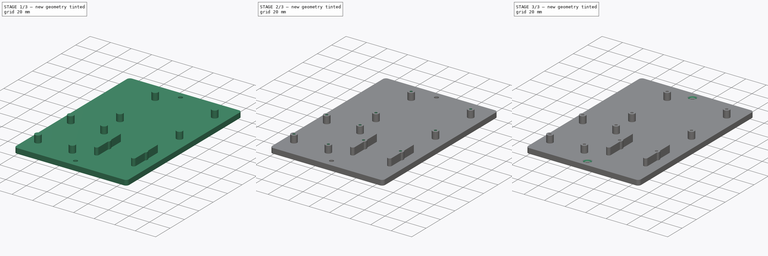
[diagram: build sequence overview — one tinted view per stage of 3, left to right]
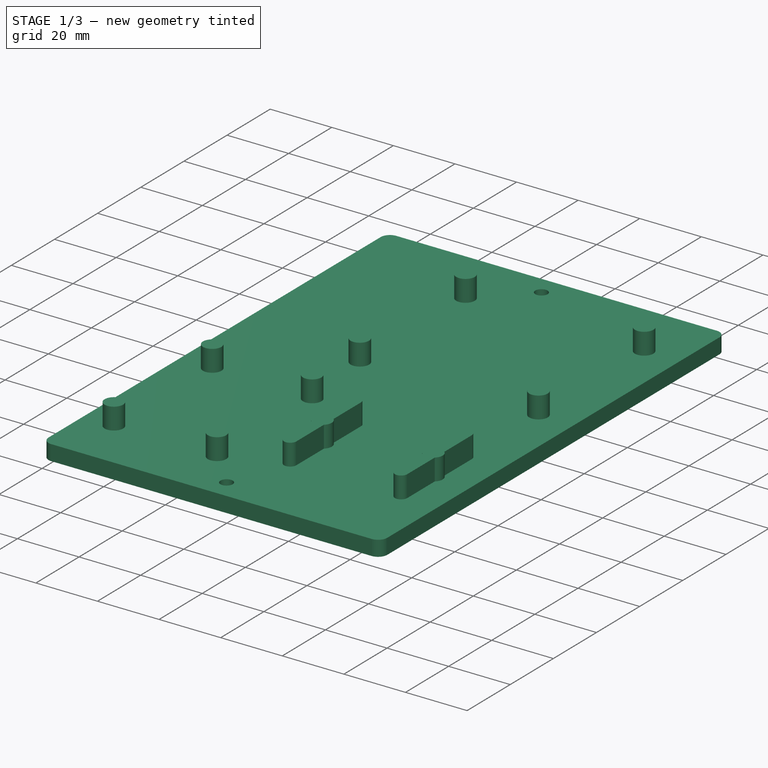
[diagram: stage 1 of 3 — iso view after this stage's code; geometry added in this stage tinted green]
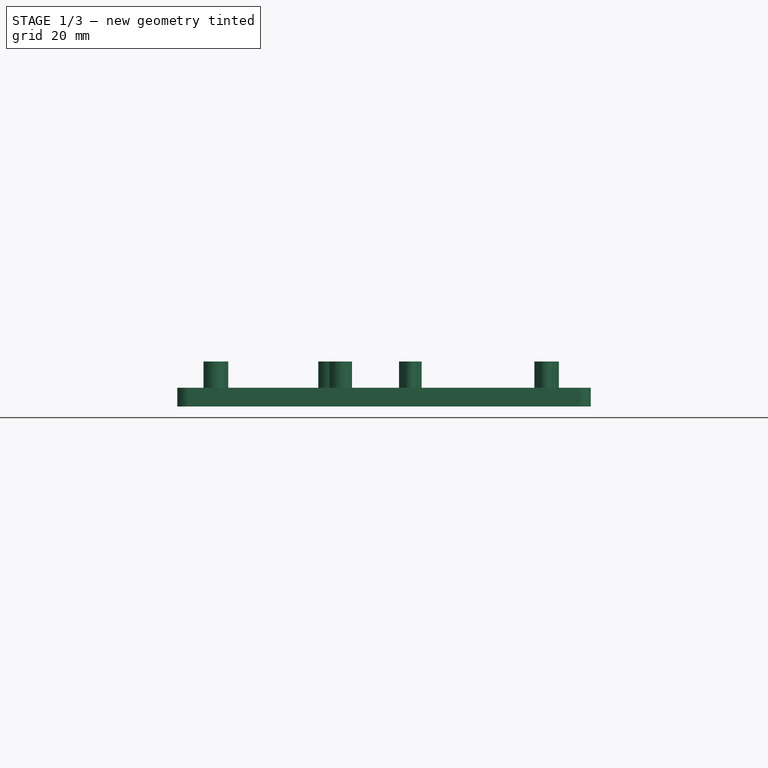
[diagram: stage 1 of 3 — front view after this stage's code; geometry added in this stage tinted green]
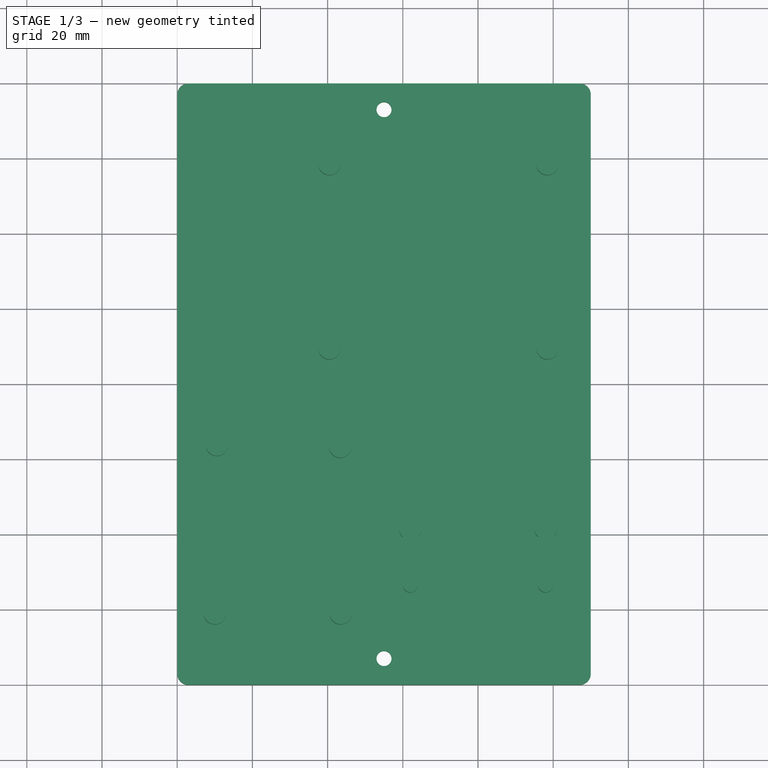
[diagram: stage 1 of 3 — top view after this stage's code; geometry added in this stage tinted green]
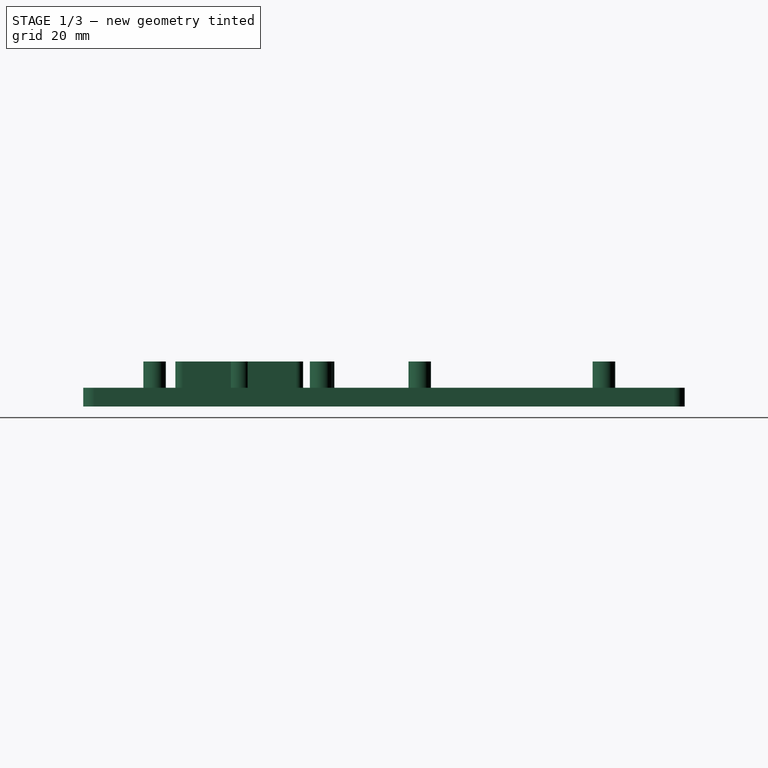
[diagram: stage 1 of 3 — right view after this stage's code; geometry added in this stage tinted green]
FCSTD DOCUMENT  (FreeCAD 1.0R39109 (Git))
Label: LV_Teil
License: All rights reserved
LicenseURL: https://en.wikipedia.org/wiki/All_rights_reserved
objects: Sketcher::SketchObject×3, PartDesign::Pad×2, PartDesign::Line×2, PartDesign::Groove×2, PartDesign::Pocket×1, PartDesign::Plane×1, PartDesign::Body×1
note: 25 computed .brp shape members not serialized (recipe doc carries the construction recipe); baked Part::Feature solids carry a one-line shape summary decoded from their .brp

FEATURE [Sketcher::SketchObject] Sketch
  ArcFitTolerance = 1e-06
  AttachmentSupport = -> [XY_Plane]
  FullyConstrained = true
  MakeInternals = false
  MapMode = 5
  sketch-geometry (85):
    g0: LineSegment StartX=9e-16 StartY=-3 StartZ=0 EndX=9e-16 EndY=-157 EndZ=0
    g1: LineSegment StartX=3 StartY=-160 StartZ=0 EndX=107 EndY=-160 EndZ=0
    g2: LineSegment StartX=110 StartY=-157 StartZ=0 EndX=110 EndY=-3 EndZ=0
    g3: LineSegment StartX=107 StartY=0 StartZ=0 EndX=3 EndY=0 EndZ=0
    g4: ArcOfCircle CenterX=3 CenterY=-3 CenterZ=0 NormalX=0 NormalY=0 NormalZ=1 AngleXU=0 Radius=3 StartAngle=1.5708 EndAngle=3.14159
    g5: ArcOfCircle CenterX=3 CenterY=-157 CenterZ=0 NormalX=0 NormalY=0 NormalZ=1 AngleXU=0 Radius=3 StartAngle=3.14159 EndAngle=4.71239
    g6: ArcOfCircle CenterX=107 CenterY=-157 CenterZ=0 NormalX=0 NormalY=0 NormalZ=1 AngleXU=0 Radius=3 StartAngle=4.71239 EndAngle=6.28319
    g7: ArcOfCircle CenterX=107 CenterY=-3 CenterZ=0 NormalX=0 NormalY=0 NormalZ=1 AngleXU=0 Radius=3 StartAngle=0 EndAngle=1.5708
    g8: GeomPoint [constr] X=0 Y=0 Z=0
    g9: GeomPoint [constr] X=110 Y=-160 Z=0
    g10: LineSegment [constr] StartX=107 StartY=-157 StartZ=0 EndX=107 EndY=-144 EndZ=0
    g11: LineSegment [constr] StartX=107 StartY=-144 StartZ=0 EndX=102 EndY=-144 EndZ=0
    g12: LineSegment [constr] StartX=102 StartY=-144 StartZ=0 EndX=102 EndY=-157 EndZ=0
    g13: LineSegment [constr] StartX=102 StartY=-157 StartZ=0 EndX=107 EndY=-157 EndZ=0
    g14: LineSegment [constr] StartX=102 StartY=-144 StartZ=0 EndX=102 EndY=-93 EndZ=0
    g15: LineSegment [constr] StartX=102 StartY=-93 StartZ=0 EndX=58 EndY=-93 EndZ=0
    g16: LineSegment [constr] StartX=58 StartY=-93 StartZ=0 EndX=58 EndY=-144 EndZ=0
    g17: LineSegment [constr] StartX=58 StartY=-144 StartZ=0 EndX=102 EndY=-144 EndZ=0
    g18: GeomPoint X=55 Y=0 Z=0
    g19: GeomPoint X=55 Y=-160 Z=0
    g20: LineSegment [constr] StartX=55 StartY=0 StartZ=0 EndX=55 EndY=-7 EndZ=0
    g21: LineSegment [constr] StartX=55 StartY=-160 StartZ=0 EndX=55 EndY=-153 EndZ=0
    g22: Circle CenterX=55 CenterY=-153 CenterZ=0 NormalX=0 NormalY=0 NormalZ=1 AngleXU=0 Radius=2
    g23: Circle CenterX=55 CenterY=-7 CenterZ=0 NormalX=0 NormalY=0 NormalZ=1 AngleXU=0 Radius=2
    g24: Circle CenterX=10 CenterY=-141 CenterZ=0 NormalX=0 NormalY=0 NormalZ=1 AngleXU=0 Radius=1.25
    g25: Circle CenterX=43.5 CenterY=-141 CenterZ=0 NormalX=0 NormalY=0 NormalZ=1 AngleXU=0 Radius=1.25
    g26: Circle CenterX=10.5661 CenterY=-96.2036 CenterZ=0 NormalX=0 NormalY=0 NormalZ=1 AngleXU=0 Radius=1.25
    g27: Circle CenterX=43.3624 CenterY=-96.7002 CenterZ=0 NormalX=0 NormalY=0 NormalZ=1 AngleXU=0 Radius=1.25
    g28: Circle CenterX=62 CenterY=-118.5 CenterZ=0 NormalX=0 NormalY=0 NormalZ=1 AngleXU=0 Radius=1.25
    g29: Circle CenterX=98 CenterY=-118.5 CenterZ=0 NormalX=0 NormalY=0 NormalZ=1 AngleXU=0 Radius=1.25
    g30: LineSegment [constr] StartX=17 StartY=-18 StartZ=0 EndX=17 EndY=-74 EndZ=0
    g31: LineSegment [constr] StartX=17 StartY=-74 StartZ=0 EndX=102 EndY=-74 EndZ=0
    g32: LineSegment [constr] StartX=102 StartY=-74 StartZ=0 EndX=102 EndY=-18 EndZ=0
    g33: LineSegment [constr] StartX=102 StartY=-18 StartZ=0 EndX=17 EndY=-18 EndZ=0
    g34: LineSegment [constr] StartX=102 StartY=-18 StartZ=0 EndX=107 EndY=-18 EndZ=0
    g35: LineSegment [constr] StartX=107 StartY=-18 StartZ=0 EndX=107 EndY=-3 EndZ=0
    g36: LineSegment [constr] StartX=107 StartY=-3 StartZ=0 EndX=102 EndY=-3 EndZ=0
    g37: LineSegment [constr] StartX=102 StartY=-3 StartZ=0 EndX=102 EndY=-18 EndZ=0
    g38: Circle CenterX=40.5 CenterY=-21.5 CenterZ=0 NormalX=0 NormalY=0 NormalZ=1 AngleXU=0 Radius=1.25
    g39: Circle CenterX=40.5 CenterY=-70.5 CenterZ=0 NormalX=0 NormalY=0 NormalZ=1 AngleXU=0 Radius=1.25
    g40: Circle CenterX=98.5 CenterY=-21.5 CenterZ=0 NormalX=0 NormalY=0 NormalZ=1 AngleXU=0 Radius=1.25
    g41: Circle CenterX=98.5 CenterY=-70.5 CenterZ=0 NormalX=0 NormalY=0 NormalZ=1 AngleXU=0 Radius=1.25
    g42: Circle CenterX=40.5 CenterY=-70.5 CenterZ=0 NormalX=0 NormalY=0 NormalZ=1 AngleXU=0 Radius=3
    g43: Circle CenterX=98.5 CenterY=-70.5 CenterZ=0 NormalX=0 NormalY=0 NormalZ=1 AngleXU=0 Radius=3
    g44: Circle CenterX=40.5 CenterY=-21.5 CenterZ=0 NormalX=0 NormalY=0 NormalZ=1 AngleXU=0 Radius=3
    g45: Circle CenterX=98.5 CenterY=-21.5 CenterZ=0 NormalX=0 NormalY=0 NormalZ=1 AngleXU=0 Radius=3
    g46: Circle CenterX=10.5661 CenterY=-96.2036 CenterZ=0 NormalX=0 NormalY=0 NormalZ=1 AngleXU=0 Radius=3
    g47: Circle CenterX=43.3624 CenterY=-96.7002 CenterZ=0 NormalX=0 NormalY=0 NormalZ=1 AngleXU=0 Radius=3
    g48: Circle CenterX=10 CenterY=-141 CenterZ=0 NormalX=0 NormalY=0 NormalZ=1 AngleXU=0 Radius=3
    g49: Circle CenterX=43.5 CenterY=-141 CenterZ=0 NormalX=0 NormalY=0 NormalZ=1 AngleXU=0 Radius=3
    g50: Circle CenterX=62 CenterY=-118.5 CenterZ=0 NormalX=0 NormalY=0 NormalZ=1 AngleXU=0 Radius=3
    g51: Circle CenterX=98 CenterY=-118.5 CenterZ=0 NormalX=0 NormalY=0 NormalZ=1 AngleXU=0 Radius=3
    g52: GeomPoint [constr] X=62 Y=-118.5 Z=0
    g53: GeomPoint [constr] X=98 Y=-118.5 Z=0
    g54: LineSegment [constr] StartX=60 StartY=-133.5 StartZ=0 EndX=64 EndY=-133.5 EndZ=0
    g55: LineSegment [constr] StartX=64 StartY=-133.5 StartZ=0 EndX=64 EndY=-103.5 EndZ=0
    g56: LineSegment [constr] StartX=64 StartY=-103.5 StartZ=0 EndX=60 EndY=-103.5 EndZ=0
    g57: LineSegment [constr] StartX=60 StartY=-103.5 StartZ=0 EndX=60 EndY=-133.5 EndZ=0
    g58: GeomPoint [constr] X=62 Y=-118.5 Z=0
    g59: LineSegment [constr] StartX=96 StartY=-133.5 StartZ=0 EndX=100 EndY=-133.5 EndZ=0
    g60: LineSegment [constr] StartX=100 StartY=-133.5 StartZ=0 EndX=100 EndY=-103.5 EndZ=0
    g61: LineSegment [constr] StartX=100 StartY=-103.5 StartZ=0 EndX=96 EndY=-103.5 EndZ=0
    g62: LineSegment [constr] StartX=96 StartY=-103.5 StartZ=0 EndX=96 EndY=-133.5 EndZ=0
    g63: GeomPoint [constr] X=98 Y=-118.5 Z=0
    g64: GeomPoint [constr] X=62 Y=-103.5 Z=0
    g65: GeomPoint [constr] X=62 Y=-133.5 Z=0
    g66: ArcOfCircle CenterX=62 CenterY=-103.5 CenterZ=0 NormalX=0 NormalY=0 NormalZ=1 AngleXU=0 Radius=2 StartAngle=-3.6e-15 EndAngle=3.14159
    g67: ArcOfCircle CenterX=62 CenterY=-133.5 CenterZ=0 NormalX=0 NormalY=0 NormalZ=1 AngleXU=0 Radius=2 StartAngle=3.14159 EndAngle=6.28319
    g68: LineSegment StartX=64 StartY=-103.5 StartZ=0 EndX=64 EndY=-133.5 EndZ=0
    g69: LineSegment StartX=60 StartY=-103.5 StartZ=0 EndX=60 EndY=-133.5 EndZ=0
    g70: GeomPoint X=98 Y=-103.5 Z=0
    g71: GeomPoint X=98 Y=-133.5 Z=0
    g72: ArcOfCircle CenterX=98 CenterY=-103.5 CenterZ=0 NormalX=0 NormalY=0 NormalZ=1 AngleXU=0 Radius=2 StartAngle=5e-16 EndAngle=3.14159
    g73: ArcOfCircle CenterX=98 CenterY=-133.5 CenterZ=0 NormalX=0 NormalY=0 NormalZ=1 AngleXU=0 Radius=2 StartAngle=3.14159 EndAngle=6.28319
    g74: LineSegment StartX=100 StartY=-103.5 StartZ=0 EndX=100 EndY=-133.5 EndZ=0
    g75: LineSegment StartX=96 StartY=-103.5 StartZ=0 EndX=96 EndY=-133.5 EndZ=0
    g76: LineSegment [constr] StartX=3 StartY=-157 StartZ=0 EndX=10 EndY=-157 EndZ=0
    g77: LineSegment [constr] StartX=10 StartY=-157 StartZ=0 EndX=10 EndY=-141 EndZ=0
    g78: LineSegment [constr] StartX=10 StartY=-141 StartZ=0 EndX=3 EndY=-141 EndZ=0
    g79: LineSegment [constr] StartX=3 StartY=-141 StartZ=0 EndX=3 EndY=-157 EndZ=0
    g80: LineSegment [constr] StartX=10 StartY=-141 StartZ=0 EndX=43.5 EndY=-141 EndZ=0
    g81: LineSegment [constr] StartX=10.5661 StartY=-96.2036 StartZ=0 EndX=10 EndY=-141 EndZ=0
    g82: LineSegment [constr] StartX=10.5661 StartY=-96.2036 StartZ=0 EndX=43.5 EndY=-141 EndZ=0
    g83: LineSegment [constr] StartX=43.5 StartY=-141 StartZ=0 EndX=43.3624 EndY=-96.7002 EndZ=0
    g84: LineSegment [constr] StartX=43.3624 StartY=-96.7002 StartZ=0 EndX=10.5661 EndY=-96.2036 EndZ=0
  constraints (197):
    c: Tangent(g0,g4) = -1.5708
    c: Tangent(g0,g5) = -1.5708
    c: Tangent(g1,g5) = -1.5708
    c: Tangent(g1,g6) = -1.5708
    c: Tangent(g2,g6) = -1.5708
    c: Tangent(g2,g7) = -1.5708
    c: Tangent(g3,g7) = -1.5708
    c: Tangent(g3,g4) = -1.5708
    c: Vertical(g0)
    c: Vertical(g2)
    c: Horizontal(g1)
    c: Horizontal(g3)
    c: Equal(g4,g5)
    c: Equal(g5,g6)
    c: Equal(g6,g7)
    c: PointOnObject(g8,g0)
    c: PointOnObject(g8,g3)
    c: PointOnObject(g9,g1)
    c: PointOnObject(g9,g2)
    c: Distance(g0,g2) = 110
    c: Distance(g1,g3) = 160
    c: Radius(g5) = 3
    c: Coincident(g8,g-1)
    c: Coincident(g10,g11)
    c: Coincident(g11,g12)
    c: Coincident(g12,g13)
    c: Coincident(g13,g10)
    c: Vertical(g10)
    c: Vertical(g12)
    c: Horizontal(g11)
    c: Horizontal(g13)
    c: Distance(g10,g12) = 5
    c: Distance(g11,g13) = 13
    c: Coincident(g10,g6)
    c: Coincident(g14,g15)
    c: Coincident(g15,g16)
    c: Coincident(g16,g17)
    c: Coincident(g17,g14)
    c: Vertical(g14)
    c: Vertical(g16)
    c: Horizontal(g15)
    c: Horizontal(g17)
    c: Distance(g14,g16) = 44
    c: Distance(g15,g17) = 51
    c: Coincident(g14,g11)
    c: PointOnObject(g18,g3)
    c: Distance(g18,g0) = 55
    c: Symmetric(g1,g1,g19)
    c: Coincident(g20,g18)
    c: Vertical(g20)
    c: DistanceY(g20,g20) = 7
    c: Distance(g21) = 7
    c: Coincident(g21,g19)
    c: Vertical(g21)
    c: Diameter(g22) = 4
    c: Coincident(g22,g21)
    c: Diameter(g23) = 4
    c: Coincident(g23,g20)
    c: Diameter(g24) = 2.5
    c: Diameter(g25) = 2.5
    c: Diameter(g26) = 2.5
    c: Diameter(g27) = 2.5
    c: Diameter(g28) = 2.5
    c: Diameter(g29) = 2.5
    c: Distance(g28,g16) = 4
    c: Distance(g29,g14) = 4
    c: Distance(g28,g17) = 25.5
    c: Distance(g29,g17) = 25.5
    c: Coincident(g30,g31)
    c: Coincident(g31,g32)
    c: Coincident(g32,g33)
    c: Coincident(g33,g30)
    c: Vertical(g30)
    c: Vertical(g32)
    c: Horizontal(g31)
    c: Horizontal(g33)
    c: Distance(g30,g32) = 85
    c: Distance(g31,g33) = 56
    c: Coincident(g34,g35)
    c: Coincident(g35,g36)
    c: Coincident(g36,g37)
    c: Coincident(g37,g34)
    c: Horizontal(g34)
    c: Horizontal(g36)
    c: Vertical(g35)
    c: Vertical(g37)
    c: Coincident(g34,g32)
    c: Coincident(g35,g7)
    c: DistanceY(g35,g35) = 15
    c: DistanceX(g34,g34) = 5
    c: Diameter(g38) = 2.5
    c: Diameter(g39) = 2.5
    c: Diameter(g40) = 2.5
    c: Diameter(g41) = 2.5
    c: Distance(g41,g31) = 3.5
    c: Distance(g41,g32) = 3.5
    c: Distance(g40,g33) = 3.5
    c: Distance(g40,g32) = 3.5
    c: Distance(g38,g33) = 3.5
    c: Distance(g39,g31) = 3.5
    c: DistanceX(g39,g41) = 58
    c: DistanceX(g38,g40) = 58
    c: Diameter(g42) = 6
    c: Coincident(g42,g39)
    c: Diameter(g43) = 6
    c: Coincident(g43,g41)
    c: Diameter(g44) = 6
    c: Coincident(g44,g38)
    c: Diameter(g45) = 6
    c: Coincident(g45,g40)
    c: Diameter(g46) = 6
    c: Coincident(g46,g26)
    c: Diameter(g47) = 6
    c: Coincident(g47,g27)
    c: Diameter(g48) = 6
    c: Coincident(g48,g24)
    c: Diameter(g49) = 6
    c: Coincident(g49,g25)
    c: Diameter(g50) = 6
    c: Coincident(g50,g28)
    c: Diameter(g51) = 6
    c: Coincident(g51,g29)
    c: Coincident(g52,g28)
    c: Coincident(g53,g29)
    c: Coincident(g54,g55)
    c: Coincident(g55,g56)
    c: Coincident(g56,g57)
    c: Coincident(g57,g54)
    c: Horizontal(g54)
    c: Horizontal(g56)
    c: Vertical(g55)
    c: Vertical(g57)
    c: Symmetric(g56,g54,g58)
    c: Distance(g55,g57) = 4
    c: Distance(g54,g56) = 30
    c: Coincident(g58,g28)
    c: Coincident(g59,g60)
    c: Coincident(g60,g61)
    c: Coincident(g61,g62)
    c: Coincident(g62,g59)
    c: Horizontal(g59)
    c: Horizontal(g61)
    c: Vertical(g60)
    c: Vertical(g62)
    c: Symmetric(g61,g59,g63)
    c: Distance(g60,g62) = 4
    c: Distance(g59,g61) = 30
    c: Coincident(g63,g29)
    c: Symmetric(g56,g56,g64)
    c: Symmetric(g54,g54,g65)
    c: Tangent(g66,g68) = 1.5708
    c: Tangent(g66,g69) = -1.5708
    c: Tangent(g67,g68) = 1.5708
    c: Tangent(g67,g69) = -1.5708
    c: Equal(g66,g67)
    c: Radius(g66) = 2
    c: Coincident(g66,g64)
    c: Coincident(g67,g65)
    c: Symmetric(g61,g61,g70)
    c: Symmetric(g59,g59,g71)
    c: Tangent(g72,g74) = 1.5708
    c: Tangent(g72,g75) = -1.5708
    c: Tangent(g73,g74) = 1.5708
    c: Tangent(g73,g75) = -1.5708
    c: Equal(g72,g73)
    c: Vertical(g75)
    c: Coincident(g72,g70)
    c: Distance(g74,g75) = 4
    c: DistanceY(g73,g70) = 30
    c: Coincident(g76,g77)
    c: Coincident(g77,g78)
    c: Coincident(g78,g79)
    c: Coincident(g79,g76)
    c: Horizontal(g76)
    c: Horizontal(g78)
    c: Vertical(g77)
    c: Vertical(g79)
    c: Coincident(g76,g5)
    c: Coincident(g77,g24)
    c: DistanceX(g76,g76) = 7
    c: DistanceY(g79,g79) = 16
    c: Coincident(g80,g24)
    c: Coincident(g80,g25)
    c: Horizontal(g80)
    c: DistanceX(g80,g80) = 33.5
    c: Coincident(g81,g26)
    c: Coincident(g81,g24)
    c: Coincident(g82,g26)
    c: Coincident(g82,g25)
    c: Coincident(g83,g25)
    c: Coincident(g83,g27)
    c: Coincident(g84,g27)
    c: Coincident(g84,g26)
    c: Distance(g81,g81) = 44.8
    c: Distance(g82,g82) = 55.6
    c: Distance(g84,g84) = 32.8
    c: Distance(g83,g83) = 44.3
FEATURE [PartDesign::Pad] Pad
  Direction = (0,0,1)
  Length = 5
  Length2 = 10
  Profile = -> Sketch [Vertex8,Edge7,Edge10,Edge8,Edge6,Edge5,Edge1,Edge17,Edge19,Edge2,Edge3,Edge4,Edge9,Edge12,Edge11,Edge15,Edge16,Edge14,Edge13,Edge18,Edge20]
  ReferenceAxis = -> Sketch [N_Axis]
  Refine = true
  Reversed = true
  Suppressed = false
  Type = 0
FEATURE [PartDesign::Pad] Pad001
  BaseFeature = -> Pad
  Direction = (0,0,1)
  Length = 7
  Length2 = 10
  Profile = -> Sketch [Edge23,Edge24,Edge22,Edge21,Edge29,Edge34,Edge32,Edge33,Edge31,Edge35,Edge36,Edge38,Edge37,Edge30,Edge28,Edge26,Edge25,Edge27]
  ReferenceAxis = -> Sketch [N_Axis]
  Refine = true
  Suppressed = false
  Type = 0
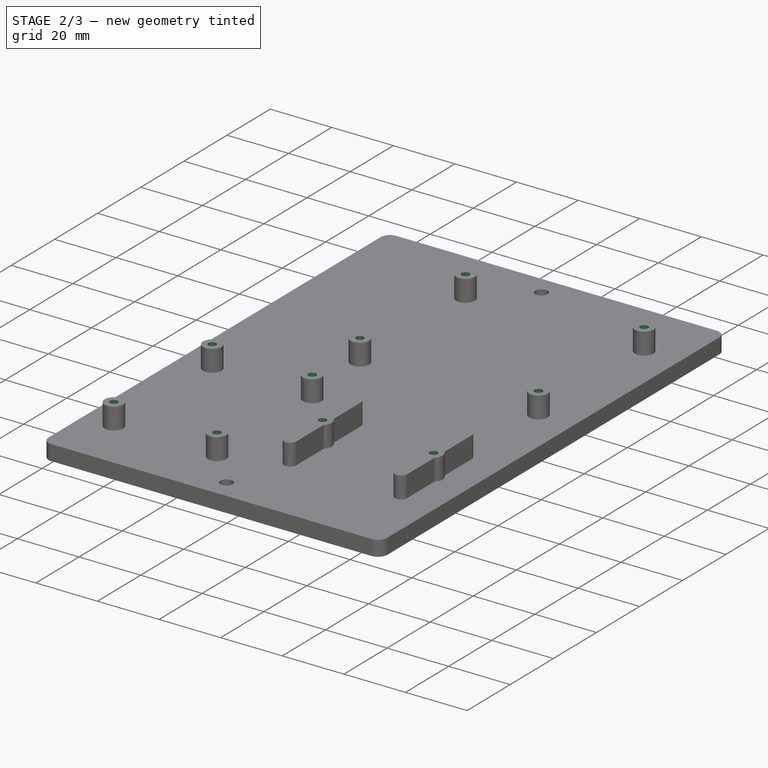
[diagram: stage 2 of 3 — iso view after this stage's code; geometry added in this stage tinted green]
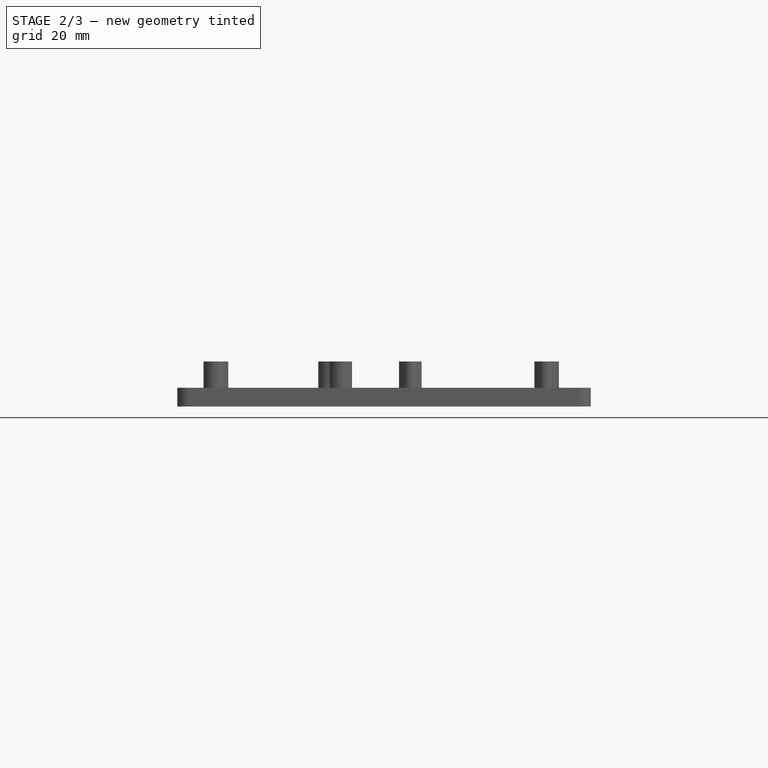
[diagram: stage 2 of 3 — front view after this stage's code; geometry added in this stage tinted green]
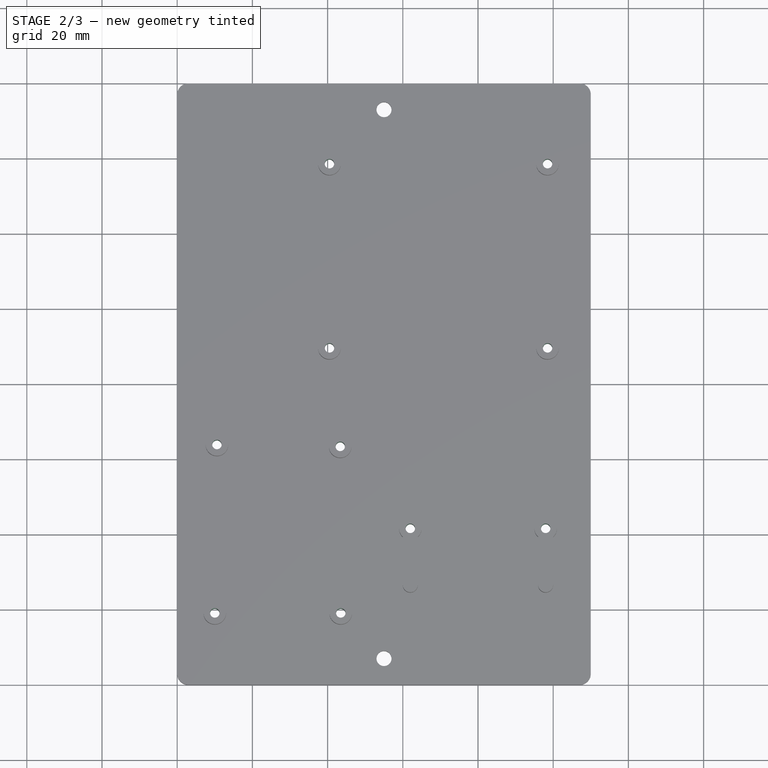
[diagram: stage 2 of 3 — top view after this stage's code; geometry added in this stage tinted green]
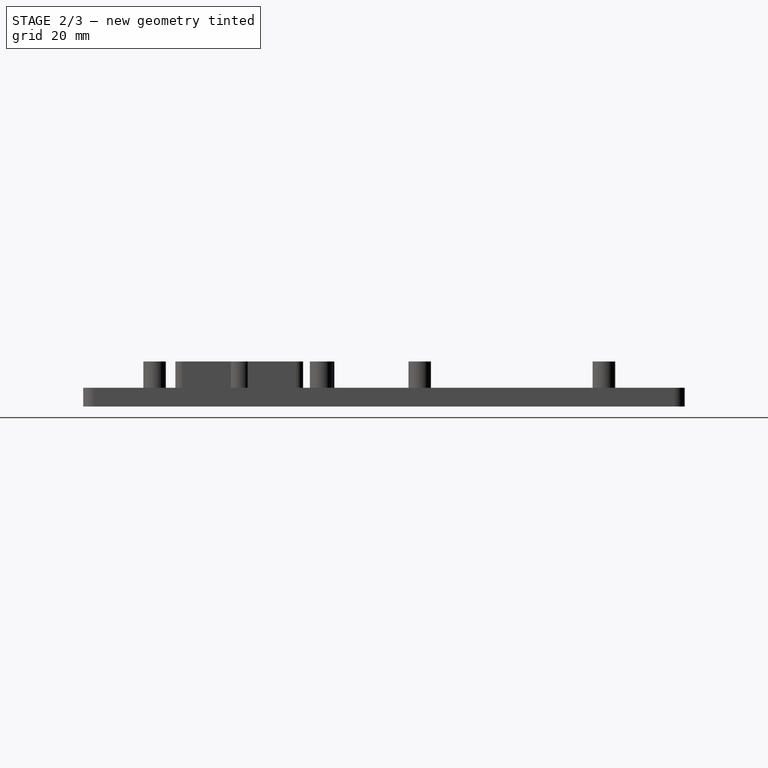
[diagram: stage 2 of 3 — right view after this stage's code; geometry added in this stage tinted green]
FEATURE [PartDesign::Pocket] Pocket
  BaseFeature = -> Pad001
  Direction = (0,0,-1)
  Length = 7
  Length2 = 5
  Profile = -> Sketch [Edge19,Edge17,Edge18,Edge20,Edge14,Edge13,Edge11,Edge12,Edge15,Edge16]
  ReferenceAxis = -> Sketch [N_Axis]
  Refine = true
  Reversed = true
  Suppressed = false
  Type = 0
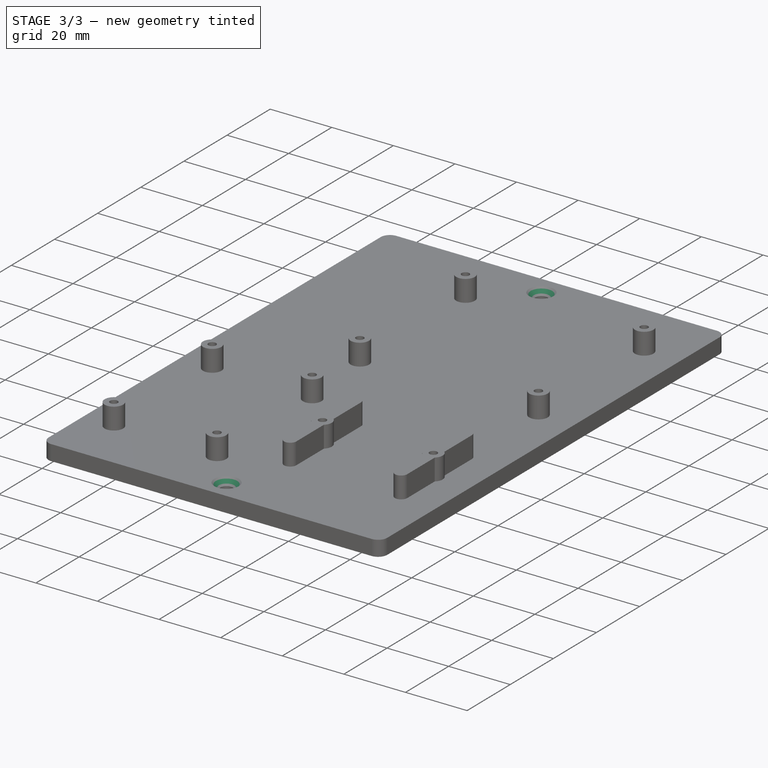
[diagram: stage 3 of 3 — iso view after this stage's code; geometry added in this stage tinted green]
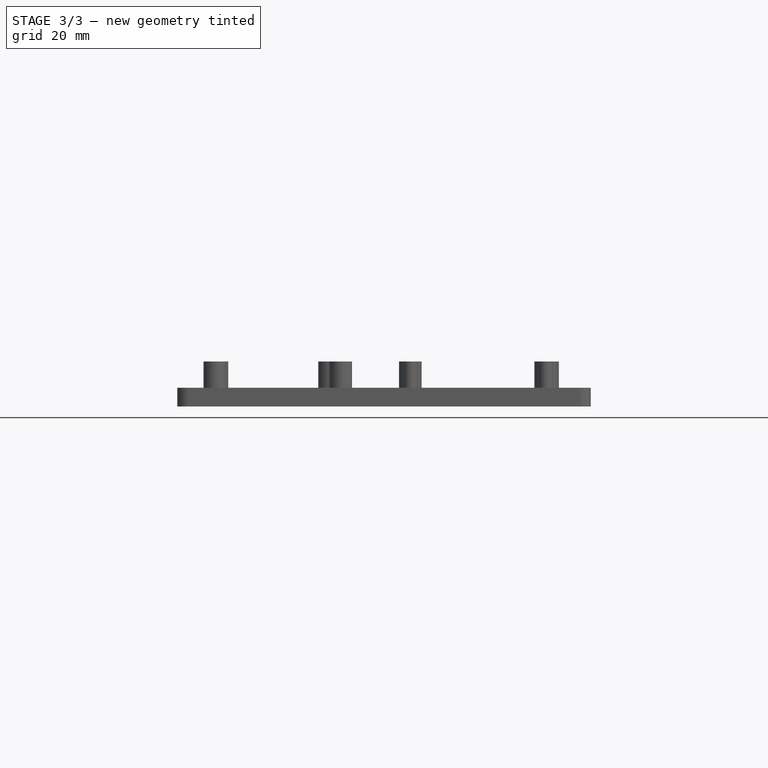
[diagram: stage 3 of 3 — front view after this stage's code; geometry added in this stage tinted green]
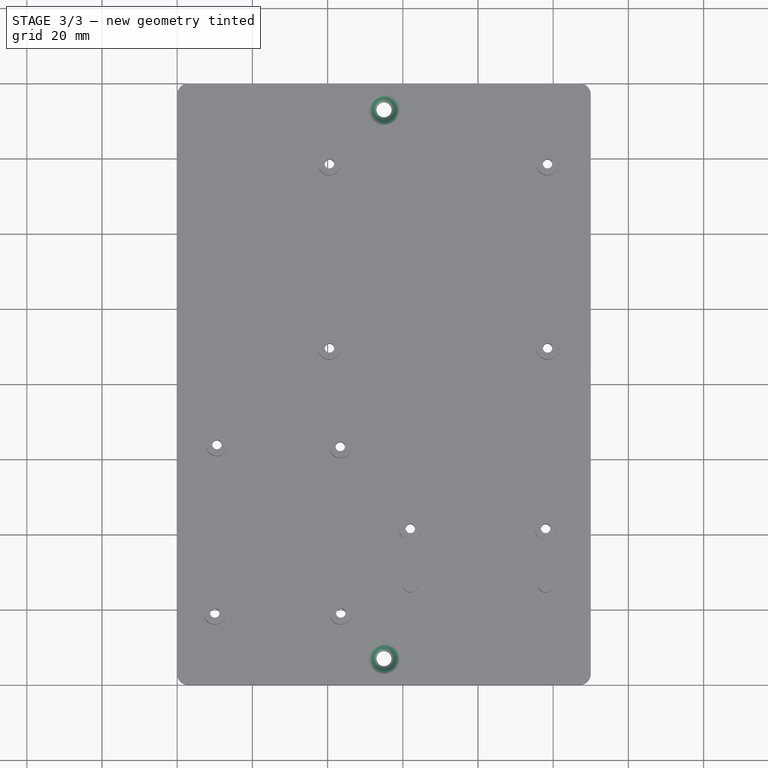
[diagram: stage 3 of 3 — top view after this stage's code; geometry added in this stage tinted green]
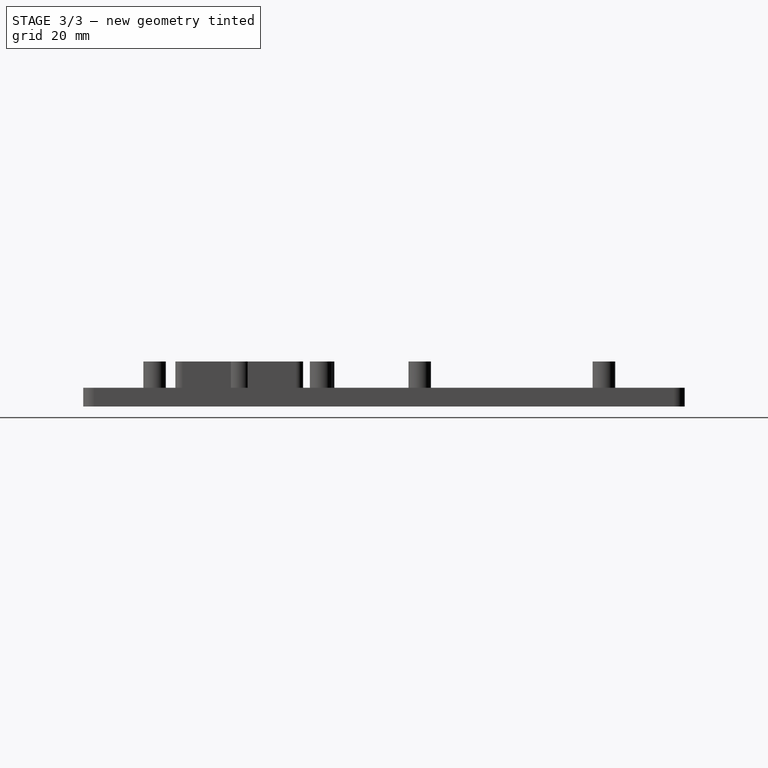
[diagram: stage 3 of 3 — right view after this stage's code; geometry added in this stage tinted green]
FEATURE [PartDesign::Line] DatumLine
  AttacherType = Attacher::AttachEngineLine
  AttachmentSupport = -> [Pocket]
  Length = 20
  MapMode = 19
  Placement = pos=(55,-7,0) rot=(0,0,1;0rad)
  ResizeMode = 0
FEATURE [PartDesign::Line] DatumLine001
  AttacherType = Attacher::AttachEngineLine
  AttachmentSupport = -> [Pocket]
  Length = 20
  MapMode = 19
  Placement = pos=(55,-153,0) rot=(0,0,1;0rad)
  ResizeMode = 0
FEATURE [PartDesign::Plane] DatumPlane
  AttachmentOffset = pos=(0,0,-55) rot=(0,0,1;0rad)
  AttachmentSupport = -> [Pocket]
  Length = 204.235
  MapMode = 5
  Placement = pos=(55,0,0) rot=(0.57735,-0.57735,-0.57735;2.0944rad)
  ResizeMode = 0
  Width = 69.2354
FEATURE [Sketcher::SketchObject] Sketch001
  ArcFitTolerance = 1e-06
  AttachmentSupport = -> [DatumPlane]
  FullyConstrained = true
  MakeInternals = false
  MapMode = 5
  Placement = pos=(55,0,0) rot=(0.57735,-0.57735,-0.57735;2.0944rad)
  sketch-geometry (4):
    g0: LineSegment [constr] StartX=0 StartY=0 StartZ=0 EndX=3 EndY=0 EndZ=0
    g1: LineSegment StartX=3 StartY=0 StartZ=0 EndX=7 EndY=0 EndZ=0
    g2: LineSegment StartX=7 StartY=0 StartZ=0 EndX=7 EndY=-4 EndZ=0
    g3: LineSegment StartX=3 StartY=0 StartZ=0 EndX=7 EndY=-4 EndZ=0
  constraints (11):
    c: Distance(g0) = 3
    c: Coincident(g0,g-1)
    c: PointOnObject(g0,g-1)
    c: Distance(g1) = 4
    c: Coincident(g1,g0)
    c: Distance(g2) = 4
    c: Coincident(g2,g1)
    c: Vertical(g2)
    c: Coincident(g3,g0)
    c: Coincident(g3,g2)
    c: Horizontal(g1)
FEATURE [PartDesign::Groove] Groove
  Angle = 360
  Angle2 = 60
  Axis = (0,2e-16,1)
  Base = (55,-7,0)
  BaseFeature = -> Pocket
  Profile = -> Sketch001
  ReferenceAxis = -> DatumLine
  Refine = true
  Suppressed = false
  Type = 0
FEATURE [Sketcher::SketchObject] Sketch002
  ArcFitTolerance = 1e-06
  AttachmentSupport = -> [DatumPlane]
  FullyConstrained = true
  MakeInternals = false
  MapMode = 5
  Placement = pos=(55,0,0) rot=(0.57735,-0.57735,-0.57735;2.0944rad)
  sketch-geometry (4):
    g0: LineSegment [constr] StartX=0 StartY=0 StartZ=0 EndX=149 EndY=0 EndZ=0
    g1: LineSegment StartX=149 StartY=0 StartZ=0 EndX=153 EndY=0 EndZ=0
    g2: LineSegment StartX=153 StartY=0 StartZ=0 EndX=153 EndY=-4 EndZ=0
    g3: LineSegment StartX=149 StartY=0 StartZ=0 EndX=153 EndY=-4 EndZ=0
  constraints (11):
    c: Coincident(g0,g-1)
    c: PointOnObject(g0,g-1)
    c: DistanceX(g-1,g0) = 149
    c: Distance(g1) = 4
    c: Coincident(g1,g0)
    c: PointOnObject(g1,g-1)
    c: Distance(g2) = 4
    c: Coincident(g2,g1)
    c: Vertical(g2)
    c: Coincident(g3,g0)
    c: Coincident(g3,g2)
FEATURE [PartDesign::Groove] Groove001
  Angle = 360
  Angle2 = 60
  Axis = (0,2e-16,1)
  Base = (55,-153,0)
  BaseFeature = -> Groove
  Profile = -> Sketch002
  ReferenceAxis = -> DatumLine001
  Refine = true
  Suppressed = false
  Type = 0
FEATURE [PartDesign::Body] Body
  AllowCompound = false
  Group = -> [Sketch,Pad,Pad001,Pocket,DatumLine,DatumLine001,DatumPlane,Sketch001,Groove,Sketch002,Groove001]
  Origin = -> Origin
  Tip = -> Groove001
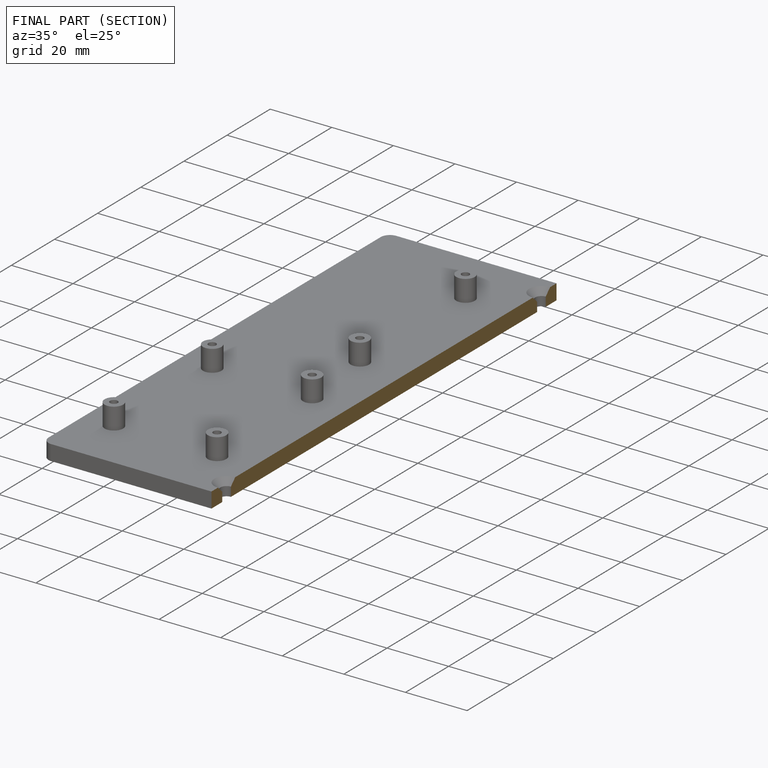
[diagram: finished part — half-section view (interior)]
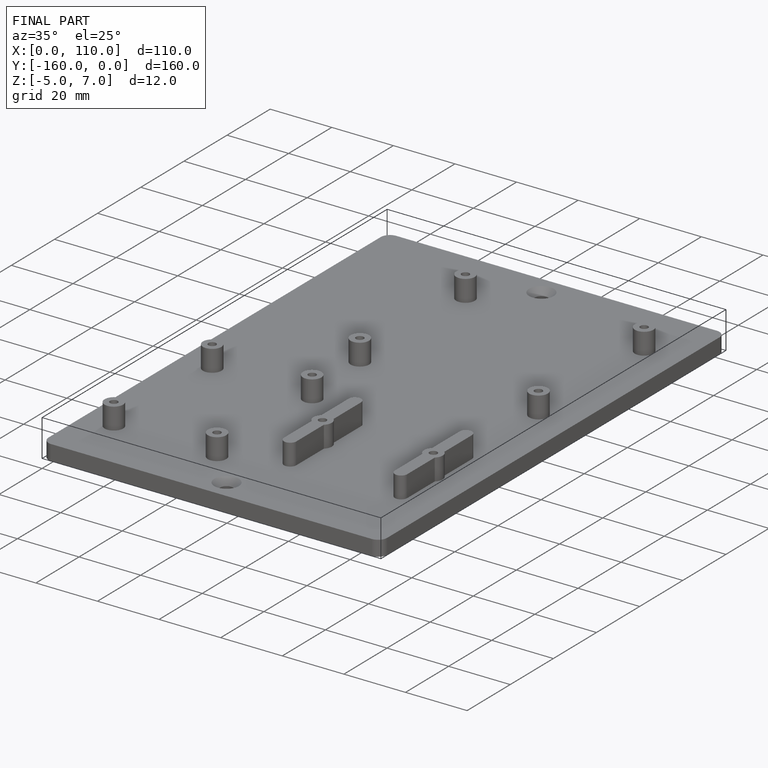
[diagram: finished part — iso view with bounding-box wireframe]
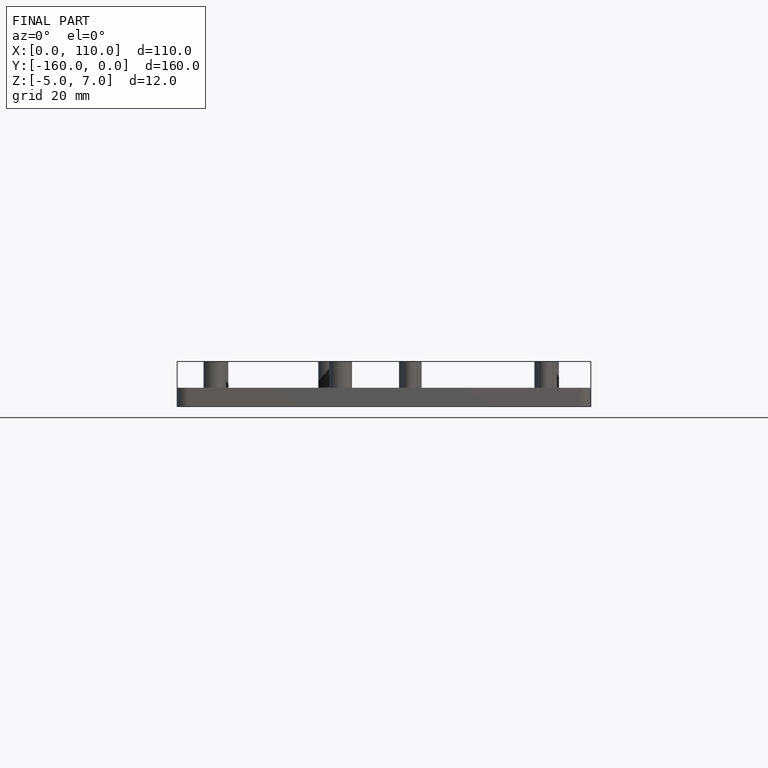
[diagram: finished part — front view with bounding-box wireframe]
